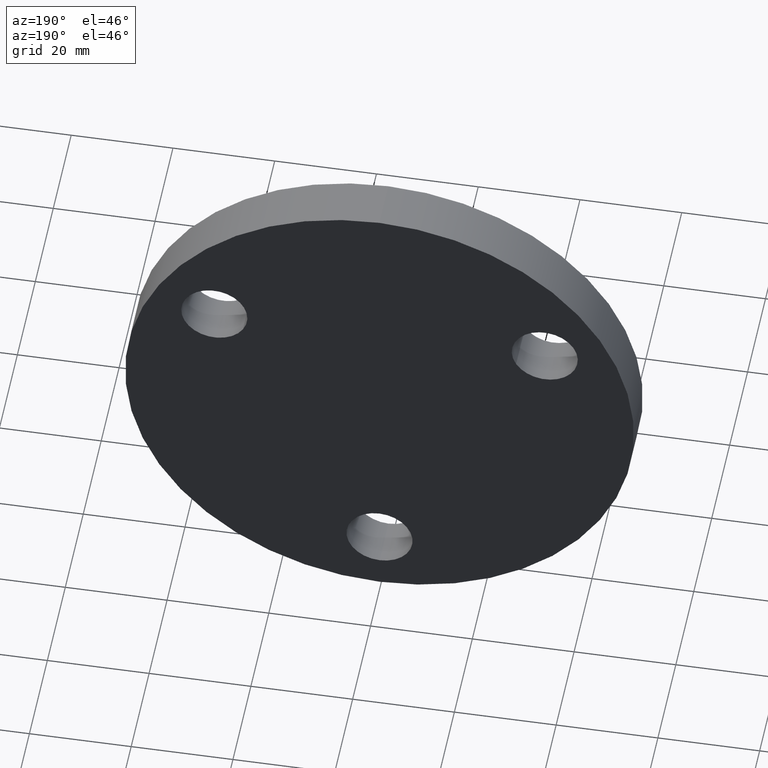
[diagram: clean part render]
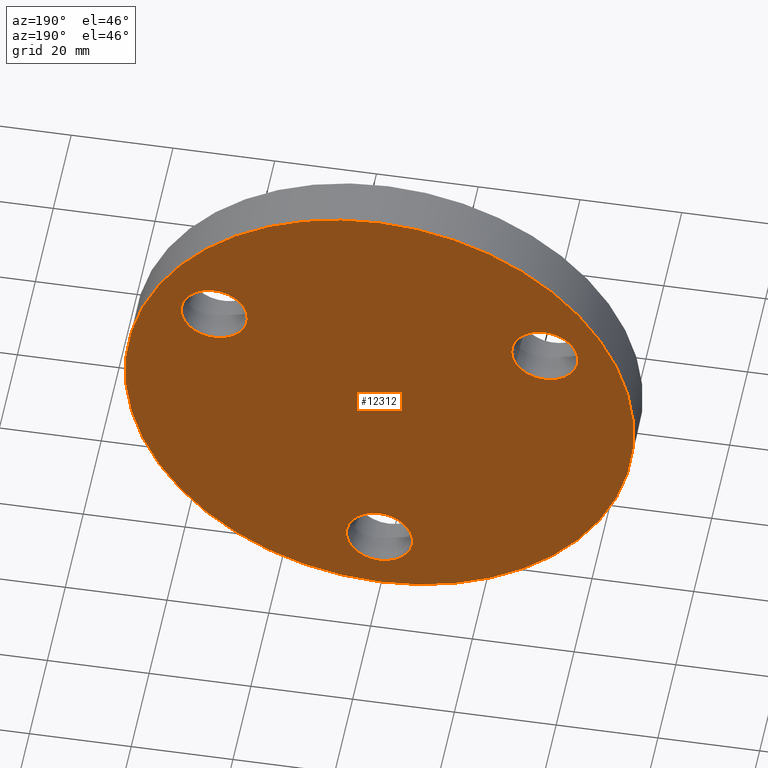
[diagram: same view with one face highlighted and labeled with its STEP entity id]
A machine part, auxiliary view. The second image highlights one B-rep face of the part: STEP entity #12312.
In plain terms, the highlighted planar face has unit normal (0, 1, 0).
Its self-contained STEP definition (entity closure, byte-faithful):
#106 = CARTESIAN_POINT ( 'NONE',  ( 0.0000000000000000000, 10.00000000000000000, 0.0000000000000000000 ) ) ;
#223 = AXIS2_PLACEMENT_3D ( 'NONE', #106, #6132, #3100 ) ;
#283 = ORIENTED_EDGE ( 'NONE', *, *, #5382, .F. ) ;
#295 = EDGE_LOOP ( 'NONE', ( #6639, #4561 ) ) ;
#317 = FACE_BOUND ( 'NONE', #295, .T. ) ;
#649 = CARTESIAN_POINT ( 'NONE',  ( -26.84678751731773600, 10.00000000000000000, 15.49999999999975000 ) ) ;
#747 = CARTESIAN_POINT ( 'NONE',  ( 0.0000000000000000000, 10.00000000000000000, 0.0000000000000000000 ) ) ;
#762 = ORIENTED_EDGE ( 'NONE', *, *, #7233, .T. ) ;
#1588 = VERTEX_POINT ( 'NONE', #6231 ) ;
#1817 = DIRECTION ( 'NONE',  ( 0.0000000000000000000, -0.0000000000000000000, 1.000000000000000000 ) ) ;
#1833 = EDGE_LOOP ( 'NONE', ( #2950, #3806 ) ) ;
#1981 = CIRCLE ( 'NONE', #11063, 6.500000000000000000 ) ;
#1990 = VERTEX_POINT ( 'NONE', #11242 ) ;
#2055 = CARTESIAN_POINT ( 'NONE',  ( 0.0000000000000000000, 10.00000000000000000, -50.00000000000000000 ) ) ;
#2222 = FACE_BOUND ( 'NONE', #1833, .T. ) ;
#2916 = CARTESIAN_POINT ( 'NONE',  ( 0.0000000000000000000, 10.00000000000000000, 0.0000000000000000000 ) ) ;
#2923 = AXIS2_PLACEMENT_3D ( 'NONE', #2916, #8825, #9925 ) ;
#2950 = ORIENTED_EDGE ( 'NONE', *, *, #8984, .F. ) ;
#2974 = DIRECTION ( 'NONE',  ( 0.0000000000000000000, 1.000000000000000000, 0.0000000000000000000 ) ) ;
#3100 = DIRECTION ( 'NONE',  ( 0.0000000000000000000, 0.0000000000000000000, 1.000000000000000000 ) ) ;
#3437 = EDGE_LOOP ( 'NONE', ( #283, #11900 ) ) ;
#3799 = CIRCLE ( 'NONE', #223, 50.00000000000000000 ) ;
#3806 = ORIENTED_EDGE ( 'NONE', *, *, #7272, .F. ) ;
#3891 = DIRECTION ( 'NONE',  ( 0.0000000000000000000, 0.0000000000000000000, 1.000000000000000000 ) ) ;
#3975 = DIRECTION ( 'NONE',  ( -0.8660254037844362700, 0.0000000000000000000, -0.5000000000000041100 ) ) ;
#4073 = CARTESIAN_POINT ( 'NONE',  ( 32.47595264191637200, 10.00000000000000000, 18.75000000000015300 ) ) ;
#4182 = DIRECTION ( 'NONE',  ( 0.0000000000000000000, 1.000000000000000000, 0.0000000000000000000 ) ) ;
#4561 = ORIENTED_EDGE ( 'NONE', *, *, #11457, .F. ) ;
#4987 = DIRECTION ( 'NONE',  ( 0.8660254037844433700, 0.0000000000000000000, -0.4999999999999919500 ) ) ;
#5230 = EDGE_LOOP ( 'NONE', ( #762, #11970 ) ) ;
#5382 = EDGE_CURVE ( 'NONE', #8118, #1990, #8180, .T. ) ;
#5665 = CARTESIAN_POINT ( 'NONE',  ( 6.123233995736766100E-015, 10.00000000000000000, 50.00000000000000000 ) ) ;
#5718 = FACE_BOUND ( 'NONE', #3437, .T. ) ;
#6059 = VERTEX_POINT ( 'NONE', #649 ) ;
#6132 = DIRECTION ( 'NONE',  ( 0.0000000000000000000, 1.000000000000000000, 0.0000000000000000000 ) ) ;
#6231 = CARTESIAN_POINT ( 'NONE',  ( -38.10511776651549800, 10.00000000000000000, 21.99999999999964500 ) ) ;
#6253 = DIRECTION ( 'NONE',  ( 0.0000000000000000000, 0.0000000000000000000, 1.000000000000000000 ) ) ;
#6639 = ORIENTED_EDGE ( 'NONE', *, *, #12245, .F. ) ;
#6777 = VERTEX_POINT ( 'NONE', #11121 ) ;
#6823 = CIRCLE ( 'NONE', #11857, 6.499999999999999100 ) ;
#7091 = CARTESIAN_POINT ( 'NONE',  ( 32.47595264191637200, 10.00000000000000000, 18.75000000000015300 ) ) ;
#7233 = EDGE_CURVE ( 'NONE', #7769, #7835, #12763, .T. ) ;
#7272 = EDGE_CURVE ( 'NONE', #1588, #6059, #1981, .T. ) ;
#7729 = AXIS2_PLACEMENT_3D ( 'NONE', #7091, #4182, #11135 ) ;
#7769 = VERTEX_POINT ( 'NONE', #2055 ) ;
#7835 = VERTEX_POINT ( 'NONE', #5665 ) ;
#8023 = DIRECTION ( 'NONE',  ( 0.0000000000000000000, 1.000000000000000000, 0.0000000000000000000 ) ) ;
#8118 = VERTEX_POINT ( 'NONE', #8603 ) ;
#8132 = CIRCLE ( 'NONE', #12363, 6.500000000000000000 ) ;
#8180 = CIRCLE ( 'NONE', #7729, 6.500000000000000900 ) ;
#8412 = CIRCLE ( 'NONE', #11363, 6.500000000000000900 ) ;
#8603 = CARTESIAN_POINT ( 'NONE',  ( 26.84678751731753400, 10.00000000000000000, 15.50000000000012400 ) ) ;
#8793 = DIRECTION ( 'NONE',  ( 0.0000000000000000000, 1.000000000000000000, 0.0000000000000000000 ) ) ;
#8825 = DIRECTION ( 'NONE',  ( 0.0000000000000000000, 1.000000000000000000, 0.0000000000000000000 ) ) ;
#8984 = EDGE_CURVE ( 'NONE', #6059, #1588, #8132, .T. ) ;
#9121 = AXIS2_PLACEMENT_3D ( 'NONE', #13003, #8023, #6253 ) ;
#9925 = DIRECTION ( 'NONE',  ( 0.0000000000000000000, 0.0000000000000000000, 1.000000000000000000 ) ) ;
#9939 = DIRECTION ( 'NONE',  ( 0.0000000000000000000, 1.000000000000000000, 0.0000000000000000000 ) ) ;
#10066 = CARTESIAN_POINT ( 'NONE',  ( -32.47595264191662100, 10.00000000000000000, 18.74999999999969800 ) ) ;
#10319 = VERTEX_POINT ( 'NONE', #10716 ) ;
#10464 = CIRCLE ( 'NONE', #9121, 6.499999999999999100 ) ;
#10481 = AXIS2_PLACEMENT_3D ( 'NONE', #747, #8793, #1817 ) ;
#10716 = CARTESIAN_POINT ( 'NONE',  ( 0.0000000000000000000, 10.00000000000000000, -31.00000000000000000 ) ) ;
#11063 = AXIS2_PLACEMENT_3D ( 'NONE', #10066, #11198, #4987 ) ;
#11121 = CARTESIAN_POINT ( 'NONE',  ( 7.960204194457797400E-016, 10.00000000000000000, -44.00000000000000000 ) ) ;
#11135 = DIRECTION ( 'NONE',  ( -0.8660254037844362700, 0.0000000000000000000, -0.5000000000000041100 ) ) ;
#11198 = DIRECTION ( 'NONE',  ( 0.0000000000000000000, 1.000000000000000000, 0.0000000000000000000 ) ) ;
#11242 = CARTESIAN_POINT ( 'NONE',  ( 38.10511776651520700, 10.00000000000000000, 22.00000000000017800 ) ) ;
#11361 = EDGE_CURVE ( 'NONE', #1990, #8118, #8412, .T. ) ;
#11363 = AXIS2_PLACEMENT_3D ( 'NONE', #4073, #2974, #3975 ) ;
#11457 = EDGE_CURVE ( 'NONE', #6777, #10319, #10464, .T. ) ;
#11692 = DIRECTION ( 'NONE',  ( 0.8660254037844433700, 0.0000000000000000000, -0.4999999999999919500 ) ) ;
#11779 = CARTESIAN_POINT ( 'NONE',  ( -32.47595264191662100, 10.00000000000000000, 18.74999999999969800 ) ) ;
#11857 = AXIS2_PLACEMENT_3D ( 'NONE', #12942, #9939, #3891 ) ;
#11864 = DIRECTION ( 'NONE',  ( 0.0000000000000000000, 1.000000000000000000, 0.0000000000000000000 ) ) ;
#11900 = ORIENTED_EDGE ( 'NONE', *, *, #11361, .F. ) ;
#11970 = ORIENTED_EDGE ( 'NONE', *, *, #12788, .T. ) ;
#12245 = EDGE_CURVE ( 'NONE', #10319, #6777, #6823, .T. ) ;
#12312 = ADVANCED_FACE ( 'NONE', ( #2222, #5718, #317, #13001 ), #13026, .T. ) ;
#12363 = AXIS2_PLACEMENT_3D ( 'NONE', #11779, #11864, #11692 ) ;
#12763 = CIRCLE ( 'NONE', #2923, 50.00000000000000000 ) ;
#12788 = EDGE_CURVE ( 'NONE', #7835, #7769, #3799, .T. ) ;
#12942 = CARTESIAN_POINT ( 'NONE',  ( 0.0000000000000000000, 10.00000000000000000, -37.50000000000000000 ) ) ;
#13001 = FACE_OUTER_BOUND ( 'NONE', #5230, .T. ) ;
#13003 = CARTESIAN_POINT ( 'NONE',  ( 0.0000000000000000000, 10.00000000000000000, -37.50000000000000000 ) ) ;
#13026 = PLANE ( 'NONE',  #10481 ) ;